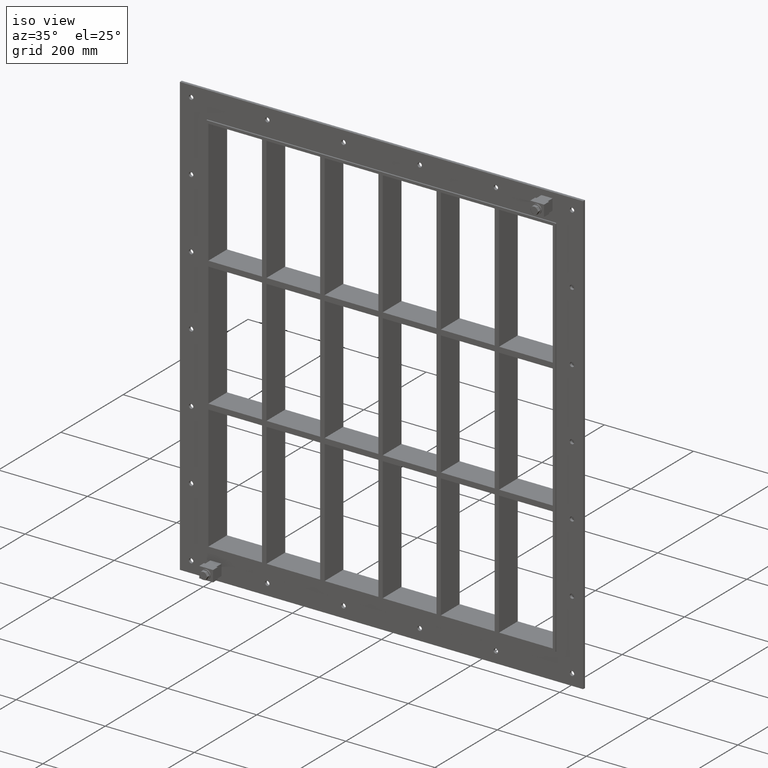
[diagram: clean part render]
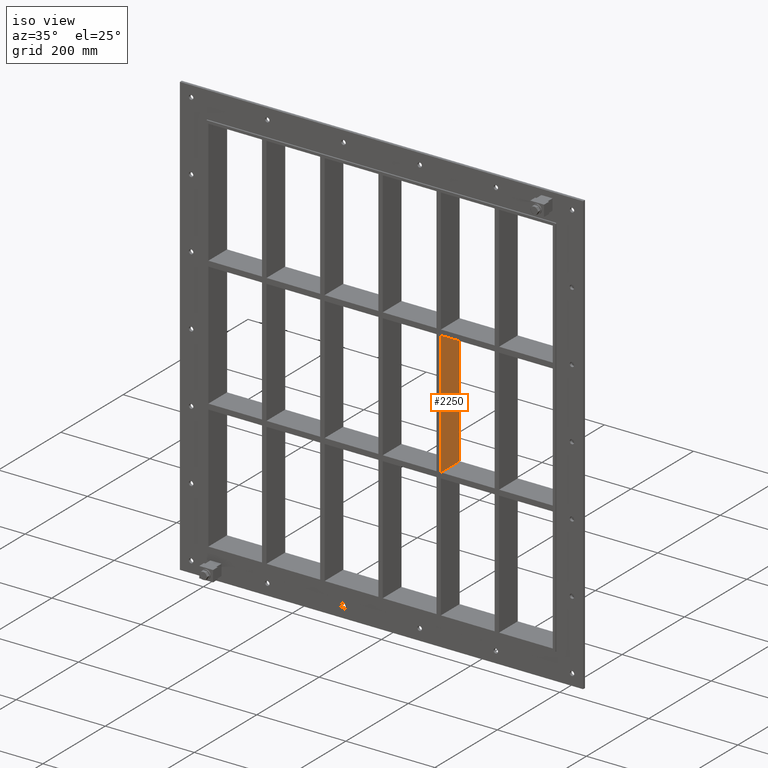
[diagram: same view with one face highlighted and labeled with its STEP entity id]
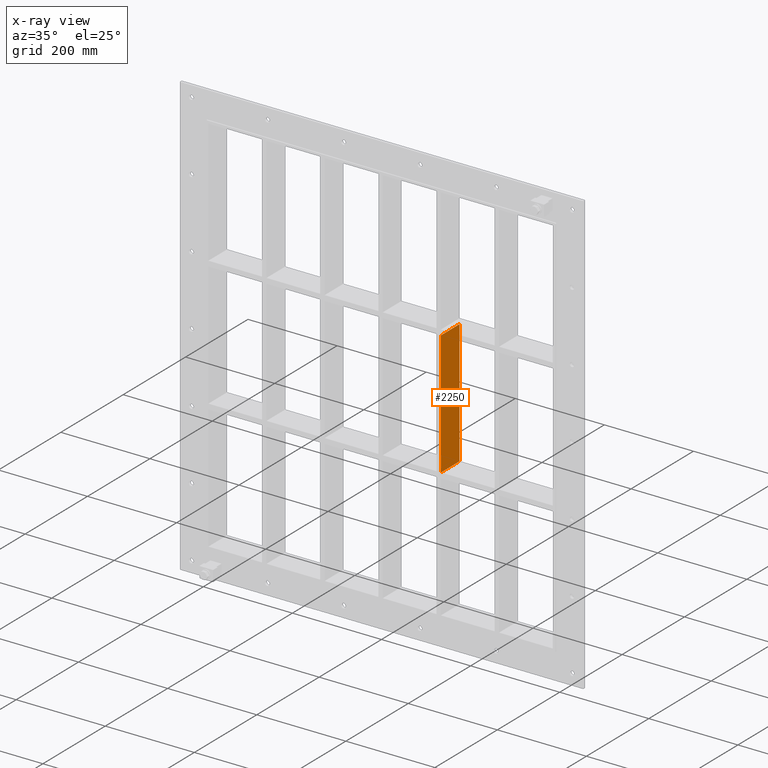
[diagram: x-ray of the same camera — body ghosted, the highlighted face saturated]
A machine part, iso view. The second image highlights one B-rep face of the part: STEP entity #2250.
The next image is the same camera in x-ray: the body ghosted, the highlighted face saturated — about 0% of this face is hidden behind the body in this view.
In plain terms, the highlighted planar face has unit normal (1, 0, 0).
Its self-contained STEP definition (entity closure, byte-faithful):
#899=CARTESIAN_POINT('',(135.49999999999642,-3.0,138.99999999998886));
#900=VERTEX_POINT('',#899);
#907=CARTESIAN_POINT('',(135.49999999999642,57.0,138.99999999998886));
#908=VERTEX_POINT('',#907);
#909=CARTESIAN_POINT('',(135.49999999999642,57.0,138.99999999998889));
#910=DIRECTION('',(0.0,-1.0,0.0));
#911=VECTOR('',#910,60.0);
#912=LINE('',#909,#911);
#913=EDGE_CURVE('',#908,#900,#912,.T.);
#1747=CARTESIAN_POINT('',(135.49999999999642,57.0,-138.99999999999977));
#1748=VERTEX_POINT('',#1747);
#1749=CARTESIAN_POINT('',(135.49999999999642,57.0,138.99999999998886));
#1750=DIRECTION('',(0.0,0.0,-1.0));
#1751=VECTOR('',#1750,277.99999999998857);
#1752=LINE('',#1749,#1751);
#1753=EDGE_CURVE('',#908,#1748,#1752,.T.);
#2227=CARTESIAN_POINT('',(135.49999999999642,-3.0,429.00000000000006));
#2228=DIRECTION('',(1.0,0.0,0.0));
#2229=DIRECTION('',(0.0,0.0,-1.0));
#2230=AXIS2_PLACEMENT_3D('',#2227,#2228,#2229);
#2231=PLANE('',#2230);
#2232=ORIENTED_EDGE('',*,*,#913,.T.);
#2233=CARTESIAN_POINT('',(135.49999999999642,-3.0,-138.99999999999977));
#2234=VERTEX_POINT('',#2233);
#2235=CARTESIAN_POINT('',(135.49999999999642,-3.0,138.99999999998886));
#2236=DIRECTION('',(0.0,0.0,-1.0));
#2237=VECTOR('',#2236,277.99999999998857);
#2238=LINE('',#2235,#2237);
#2239=EDGE_CURVE('',#900,#2234,#2238,.T.);
#2240=ORIENTED_EDGE('',*,*,#2239,.T.);
#2241=CARTESIAN_POINT('',(135.49999999999642,57.0,-138.99999999999977));
#2242=DIRECTION('',(0.0,-1.0,0.0));
#2243=VECTOR('',#2242,60.0);
#2244=LINE('',#2241,#2243);
#2245=EDGE_CURVE('',#1748,#2234,#2244,.T.);
#2246=ORIENTED_EDGE('',*,*,#2245,.F.);
#2247=ORIENTED_EDGE('',*,*,#1753,.F.);
#2248=EDGE_LOOP('',(#2232,#2240,#2246,#2247));
#2249=FACE_OUTER_BOUND('',#2248,.T.);
#2250=ADVANCED_FACE('',(#2249),#2231,.T.);